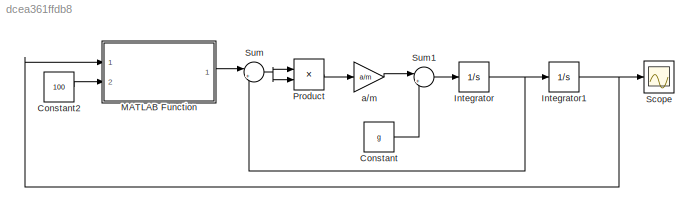
MODEL slx_dcea361ffdb8
KIND model
CONFIG AbsTol = auto
CONFIG EnableMultiTasking = off
CONFIG FixedStep = auto
CONFIG MaxStep = auto
CONFIG MinStep = auto
CONFIG RelTol = 1e-3
CONFIG SampleTimeConstraint = Unconstrained
CONFIG Solver = VariableStepAuto
CONFIG SolverName = VariableStepAuto
CONFIG StartTime = 0.0
CONFIG StopTime = 30
BLOCK [Constant] Constant
  Value = g
BLOCK [Constant] Constant2
  Value = 100
BLOCK [Integrator] Integrator
  Ports = [1, 1]
BLOCK [Integrator] Integrator1
  Ports = [1, 1]
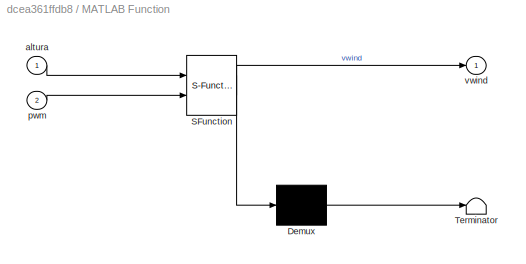
BLOCK [SubSystem] MATLAB Function
  ErrorFcn = Stateflow.Translate.translate
  PermitHierarchicalResolution = ExplicitOnly
  Ports = [2, 1]
  RequestExecContextInheritance = off
  SFBlockType = MATLAB Function
  TreatAsAtomicUnit = on
  Variant = off
BLOCK [Demux] MATLAB Function/ Demux 
  Outputs = 1
  Ports = [1, 1]
BLOCK [S-Function] MATLAB Function/ SFunction 
  EnableBusSupport = on
  FunctionName = sf_sfun
  PortCounts = [2 2]
  Ports = [2, 2]
  SFcnIsStateOwnerBlock = off
  SFunctionDeploymentMode = off
  Tag = Stateflow S-Function simulacao_sem_linearizar3 2
BLOCK [Terminator] MATLAB Function/ Terminator 
BLOCK [Inport] MATLAB Function/altura
  IconDisplay = Port number
BLOCK [Inport] MATLAB Function/pwm
  IconDisplay = Port number
  Port = 2
BLOCK [Outport] MATLAB Function/vwind
  IconDisplay = Port number
BLOCK [Product] Product
  InputSameDT = off
  OutDataTypeStr = Inherit: Inherit via internal rule
  Ports = [2, 1]
  RndMeth = Floor
  SaturateOnIntegerOverflow = off
BLOCK [Scope] Scope
  NumInputPorts = 1
  Ports = [1]
  ScopeSpecificationString = Simulink.scopes.TimeScopeBlockCfg('CurrentConfiguration', extmgr.ConfigurationSet(extmgr.Configuration('Core','General UI',true),extmgr.Configuration('Core','Source UI',true),extmgr.Configuration('Sources','WiredSimulink',true),extmgr.Configuration('Visuals','Time Domain',true,'SerializedDisplays',{struct('MinYLimReal','-6.531','MaxYLimReal','58.77903','YLabelReal','','MinYLimMag','0.00000','MaxYL...<+1359ch>
BLOCK [Sum] Sum
  IconShape = round
  InputSameDT = off
  Inputs = |+-
  OutDataTypeStr = Inherit: Inherit via internal rule
  Ports = [2, 1]
  SaturateOnIntegerOverflow = off
BLOCK [Sum] Sum1
  IconShape = round
  InputSameDT = off
  Inputs = |+-
  OutDataTypeStr = Inherit: Inherit via internal rule
  Ports = [2, 1]
  SaturateOnIntegerOverflow = off
BLOCK [Gain] a//m
  Gain = a/m
  OutDataTypeStr = Inherit: Inherit via internal rule
  ParamDataTypeStr = Inherit: Inherit via internal rule
  SaturateOnIntegerOverflow = off
LINE Constant2:1 -> MATLAB Function:2
LINE Constant:1 -> Sum1:2
NET Integrator1:1 -> MATLAB Function:1, Scope:1
NET Integrator:1 -> Integrator1:1, Sum:2
LINE MATLAB Function:1 -> Sum:1
LINE Product:1 -> a//m:1
LINE Sum1:1 -> Integrator:1
NET Sum:1 -> Product:1, Product:2
LINE a//m:1 -> Sum1:1
note: NET lines group one-source signal fan-out (src -> all destinations, sorted); 1:1 wires keep LINE
CHART MATLAB Function states=1 transitions=1
  STATE_LABEL 'eML_blk_kernel()'
  STATE_LABEL 'SCRIPT:\nfunction vwind = fittedmodel(altura,pwm)\n\np00 =       18.37;\np10 =     -0.5502;\np01 =       0.224;\np20 =      0.0105;\np11 =   -0.003002;\np02 =  -0.0006906;\np30 =  -6.885e-05;\np21 =   1.084e-05;\np12 =   8.743e-06;\np03 =   2.752e-07;\nvwind = p00 + p10*altura + p01*pwm + p20*altura^2 + p11*altura*pwm + p02*pwm^2 + p30*altura^3 + p21*altura^2*pwm + p12*altura*pwm^2 + p03*pwm^3;\nif vwind <0 \n  ...<+20ch>'
